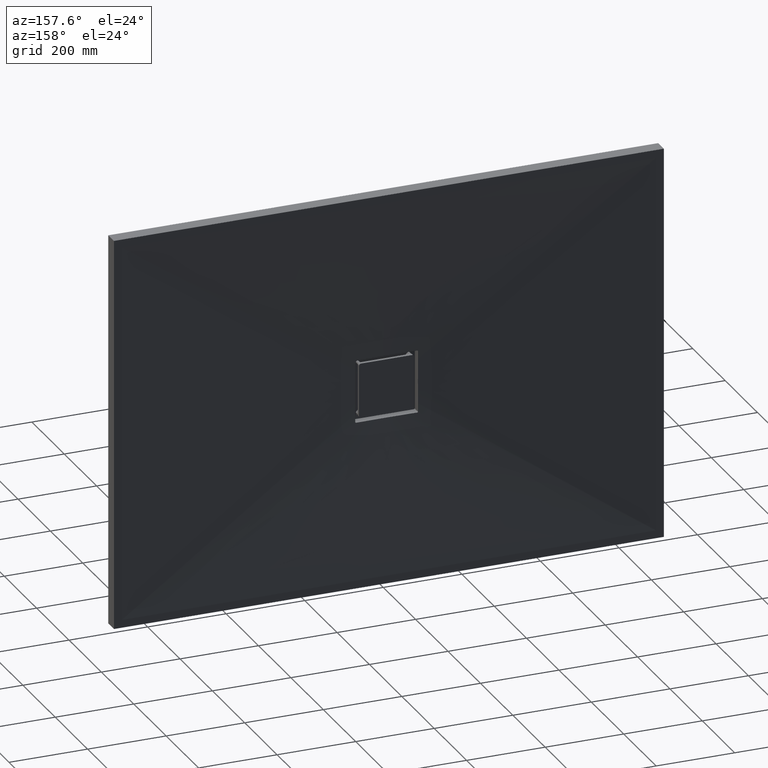
[diagram: clean part render]
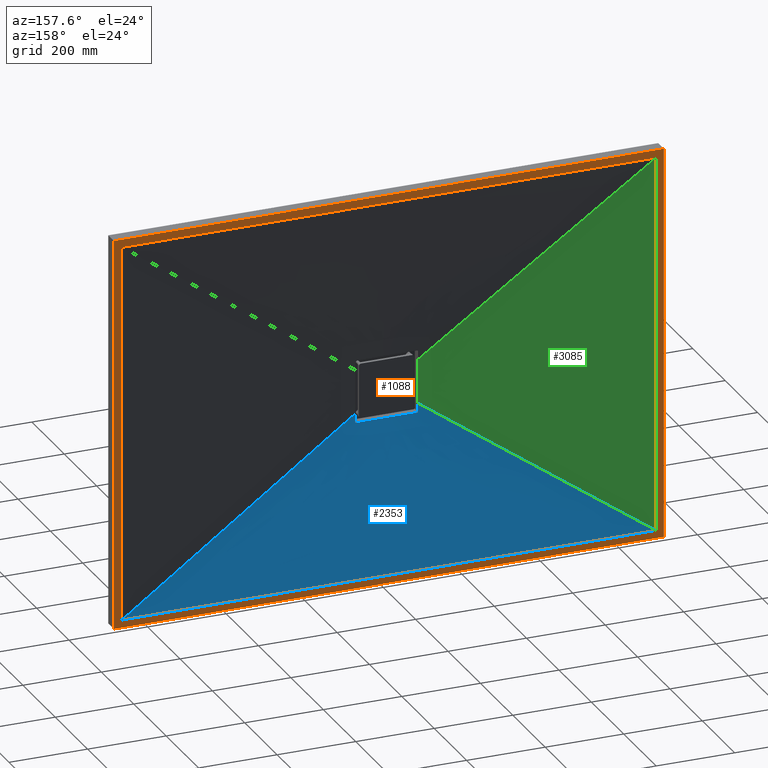
[diagram: same view with three faces highlighted in distinct colors, each labeled with its STEP entity id]
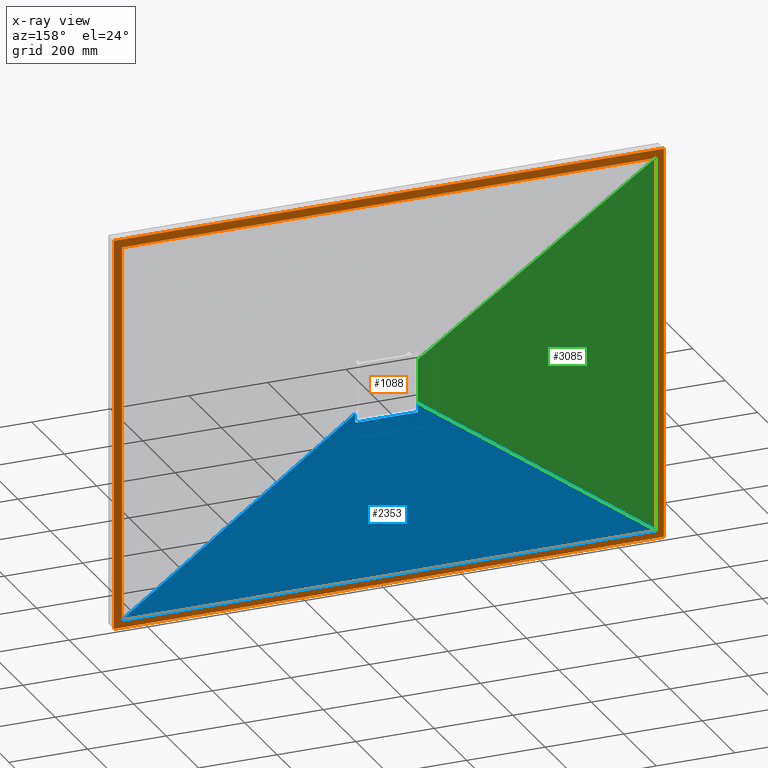
[diagram: x-ray of the same camera — body ghosted, the three highlighted faces saturated]
A machine part, auxiliary view with three faces highlighted in distinct colors.
The next image is the same camera in x-ray (body ghosted, the three faces saturated) — at least one of them is partly hidden behind the body in this view.
Their STEP definitions:

[orange] entity #1088 — the highlighted planar face has unit normal (0, 1, 0).
#45 = EDGE_LOOP ( 'NONE', ( #2621, #3109, #608, #1465 ) ) ;
#126 = VERTEX_POINT ( 'NONE', #2416 ) ;
#131 = VECTOR ( 'NONE', #470, 1000.000000000000000 ) ;
#140 = CARTESIAN_POINT ( 'NONE',  ( -699.9999999999993200, 35.00000000000014200, 500.0000000000000000 ) ) ;
#142 = VECTOR ( 'NONE', #3238, 1000.000000000000000 ) ;
#222 = CARTESIAN_POINT ( 'NONE',  ( -679.9999999999997700, 35.00000000000014200, -479.9999999999999400 ) ) ;
#234 = DIRECTION ( 'NONE',  ( 1.156482317317871700E-016, 0.0000000000000000000, 1.000000000000000000 ) ) ;
#257 = CARTESIAN_POINT ( 'NONE',  ( -699.9999999999993200, 35.00000000000014200, -499.9999999999999400 ) ) ;
#310 = EDGE_LOOP ( 'NONE', ( #2459, #1642, #1065, #3035 ) ) ;
#355 = CARTESIAN_POINT ( 'NONE',  ( 699.9999999999993200, 35.00000000000014200, -499.9999999999999400 ) ) ;
#466 = CARTESIAN_POINT ( 'NONE',  ( -679.9999999999997700, 35.00000000000014200, 480.0000000000000600 ) ) ;
#470 = DIRECTION ( 'NONE',  ( 1.000000000000000000, 0.0000000000000000000, 0.0000000000000000000 ) ) ;
#490 = DIRECTION ( 'NONE',  ( -3.330669073875470600E-016, -0.0000000000000000000, -1.000000000000000000 ) ) ;
#547 = DIRECTION ( 'NONE',  ( -1.000000000000000000, 0.0000000000000000000, 0.0000000000000000000 ) ) ;
#558 = DIRECTION ( 'NONE',  ( -1.000000000000000000, -0.0000000000000000000, -0.0000000000000000000 ) ) ;
#601 = CARTESIAN_POINT ( 'NONE',  ( 679.9999999999997700, 35.00000000000014200, -479.9999999999999400 ) ) ;
#608 = ORIENTED_EDGE ( 'NONE', *, *, #905, .T. ) ;
#678 = VECTOR ( 'NONE', #3177, 1000.000000000000000 ) ;
#716 = CARTESIAN_POINT ( 'NONE',  ( -699.9999999999993200, 35.00000000000014200, -499.9999999999999400 ) ) ;
#750 = EDGE_CURVE ( 'NONE', #2405, #1628, #1140, .T. ) ;
#752 = FACE_BOUND ( 'NONE', #310, .T. ) ;
#820 = EDGE_CURVE ( 'NONE', #2036, #2405, #3057, .T. ) ;
#874 = CARTESIAN_POINT ( 'NONE',  ( 679.9999999999997700, 35.00000000000014200, 480.0000000000000600 ) ) ;
#893 = LINE ( 'NONE', #257, #678 ) ;
#905 = EDGE_CURVE ( 'NONE', #2090, #1307, #1051, .T. ) ;
#912 = CARTESIAN_POINT ( 'NONE',  ( 700.0000000000010200, 35.00000000000014200, 500.0000000000000000 ) ) ;
#919 = AXIS2_PLACEMENT_3D ( 'NONE', #2153, #1322, #2033 ) ;
#1051 = LINE ( 'NONE', #1749, #1505 ) ;
#1065 = ORIENTED_EDGE ( 'NONE', *, *, #750, .F. ) ;
#1088 = ADVANCED_FACE ( 'NONE', ( #752, #1895 ), #1566, .T. ) ;
#1140 = LINE ( 'NONE', #466, #131 ) ;
#1273 = LINE ( 'NONE', #140, #1370 ) ;
#1295 = CARTESIAN_POINT ( 'NONE',  ( -699.9999999999993200, 35.00000000000014200, 500.0000000000000000 ) ) ;
#1307 = VERTEX_POINT ( 'NONE', #355 ) ;
#1322 = DIRECTION ( 'NONE',  ( 0.0000000000000000000, 1.000000000000000000, 0.0000000000000000000 ) ) ;
#1370 = VECTOR ( 'NONE', #2052, 1000.000000000000000 ) ;
#1384 = EDGE_CURVE ( 'NONE', #1628, #1669, #2929, .T. ) ;
#1422 = EDGE_CURVE ( 'NONE', #1307, #126, #2718, .T. ) ;
#1465 = ORIENTED_EDGE ( 'NONE', *, *, #1422, .T. ) ;
#1505 = VECTOR ( 'NONE', #490, 1000.000000000000000 ) ;
#1545 = EDGE_CURVE ( 'NONE', #3053, #2090, #1273, .T. ) ;
#1566 = PLANE ( 'NONE',  #919 ) ;
#1628 = VERTEX_POINT ( 'NONE', #1664 ) ;
#1642 = ORIENTED_EDGE ( 'NONE', *, *, #1384, .F. ) ;
#1664 = CARTESIAN_POINT ( 'NONE',  ( 679.9999999999997700, 35.00000000000014200, 480.0000000000000600 ) ) ;
#1669 = VERTEX_POINT ( 'NONE', #3096 ) ;
#1749 = CARTESIAN_POINT ( 'NONE',  ( 699.9999999999993200, 35.00000000000014200, -499.9999999999999400 ) ) ;
#1895 = FACE_OUTER_BOUND ( 'NONE', #45, .T. ) ;
#2033 = DIRECTION ( 'NONE',  ( 0.0000000000000000000, -0.0000000000000000000, 1.000000000000000000 ) ) ;
#2036 = VERTEX_POINT ( 'NONE', #2788 ) ;
#2052 = DIRECTION ( 'NONE',  ( 1.000000000000000000, 0.0000000000000000000, 0.0000000000000000000 ) ) ;
#2090 = VERTEX_POINT ( 'NONE', #912 ) ;
#2153 = CARTESIAN_POINT ( 'NONE',  ( -699.9999999999993200, 35.00000000000014200, 500.0000000000000000 ) ) ;
#2258 = LINE ( 'NONE', #601, #2397 ) ;
#2397 = VECTOR ( 'NONE', #547, 1000.000000000000000 ) ;
#2405 = VERTEX_POINT ( 'NONE', #2790 ) ;
#2416 = CARTESIAN_POINT ( 'NONE',  ( -699.9999999999993200, 35.00000000000014200, -499.9999999999999400 ) ) ;
#2459 = ORIENTED_EDGE ( 'NONE', *, *, #3199, .F. ) ;
#2621 = ORIENTED_EDGE ( 'NONE', *, *, #2685, .T. ) ;
#2685 = EDGE_CURVE ( 'NONE', #126, #3053, #893, .T. ) ;
#2718 = LINE ( 'NONE', #716, #3272 ) ;
#2788 = CARTESIAN_POINT ( 'NONE',  ( -679.9999999999997700, 35.00000000000014200, -479.9999999999999400 ) ) ;
#2790 = CARTESIAN_POINT ( 'NONE',  ( -679.9999999999997700, 35.00000000000014200, 480.0000000000000600 ) ) ;
#2929 = LINE ( 'NONE', #874, #142 ) ;
#3035 = ORIENTED_EDGE ( 'NONE', *, *, #820, .F. ) ;
#3053 = VERTEX_POINT ( 'NONE', #1295 ) ;
#3057 = LINE ( 'NONE', #222, #3295 ) ;
#3096 = CARTESIAN_POINT ( 'NONE',  ( 679.9999999999997700, 35.00000000000014200, -479.9999999999999400 ) ) ;
#3109 = ORIENTED_EDGE ( 'NONE', *, *, #1545, .T. ) ;
#3177 = DIRECTION ( 'NONE',  ( 1.110223024625156800E-016, 0.0000000000000000000, 1.000000000000000000 ) ) ;
#3199 = EDGE_CURVE ( 'NONE', #1669, #2036, #2258, .T. ) ;
#3238 = DIRECTION ( 'NONE',  ( -3.469446951953615200E-016, 0.0000000000000000000, -1.000000000000000000 ) ) ;
#3272 = VECTOR ( 'NONE', #558, 1000.000000000000000 ) ;
#3295 = VECTOR ( 'NONE', #234, 1000.000000000000000 ) ;

[blue] entity #2353 — the highlighted face is a freeform B-spline surface patch.
#89 = ORIENTED_EDGE ( 'NONE', *, *, #117, .T. ) ;
#117 = EDGE_CURVE ( 'NONE', #320, #2730, #2048, .T. ) ;
#128 = ORIENTED_EDGE ( 'NONE', *, *, #639, .F. ) ;
#145 = LINE ( 'NONE', #2278, #243 ) ;
#152 = DIRECTION ( 'NONE',  ( -0.8168055355349187500, 0.01993367139264316100, -0.5765686133187660800 ) ) ;
#169 = B_SPLINE_SURFACE_WITH_KNOTS ( 'NONE', 3, 1, ( 
 ( #2120, #1365 ),
 ( #2379, #1672 ),
 ( #1846, #1356 ),
 ( #2358, #1274 ),
 ( #809, #2370 ),
 ( #530, #745 ),
 ( #727, #1279 ),
 ( #733, #1426 ),
 ( #1410, #1440 ),
 ( #1405, #1459 ),
 ( #1743, #1702 ),
 ( #1698, #1665 ),
 ( #1346, #2313 ),
 ( #1599, #1588 ),
 ( #1553, #1538 ),
 ( #1521, #2147 ),
 ( #2015, #2009 ),
 ( #1996, #1968 ),
 ( #2041, #2020 ),
 ( #2276, #2239 ),
 ( #2111, #2100 ),
 ( #1864, #2156 ),
 ( #1797, #2084 ),
 ( #2080, #2075 ),
 ( #2053, #2234 ),
 ( #2445, #2432 ),
 ( #2410, #2392 ),
 ( #3106, #2469 ),
 ( #2620, #2605 ),
 ( #2542, #2532 ),
 ( #2580, #2318 ),
 ( #2508, #2872 ),
 ( #2943, #2975 ),
 ( #3065, #2073 ) ),
 .UNSPECIFIED., .F., .F., .F.,
 ( 4, 2, 2, 2, 2, 2, 2, 2, 2, 2, 2, 2, 2, 2, 2, 2, 4 ),
 ( 2, 2 ),
 ( 0.0000000000000000000, 0.06249999999999994400, 0.1249999999999998900, 0.1874999999999998300, 0.2499999999999997800, 0.3124999999999997200, 0.3749999999999997200, 0.4374999999999997200, 0.5000000000000000000, 0.5624999999999996700, 0.6249999999999997800, 0.6874999999999997800, 0.7499999999999998900, 0.8124999999999998900, 0.8750000000000000000, 0.9375000000000000000, 1.000000000000000000 ),
 ( 0.0000000000000000000, 1.000000000000000000 ),
 .UNSPECIFIED. ) ;
#182 = FACE_OUTER_BOUND ( 'NONE', #2255, .T. ) ;
#212 = CARTESIAN_POINT ( 'NONE',  ( 80.00000000000007100, 20.58467524346734800, -70.49061542624582400 ) ) ;
#243 = VECTOR ( 'NONE', #152, 999.9999999999998900 ) ;
#279 = CARTESIAN_POINT ( 'NONE',  ( 80.00000000000007100, 20.45860607811348700, -63.48082369486994700 ) ) ;
#294 = CARTESIAN_POINT ( 'NONE',  ( 77.50000000000056800, 20.75706579653857600, -79.99999999999984400 ) ) ;
#320 = VERTEX_POINT ( 'NONE', #2365 ) ;
#343 = CARTESIAN_POINT ( 'NONE',  ( 80.00000000000007100, 20.73350657552541800, -77.49999999999990100 ) ) ;
#358 = CARTESIAN_POINT ( 'NONE',  ( 372.6787145305899000, 27.49999999999985800, -263.0673279039460800 ) ) ;
#362 = CARTESIAN_POINT ( 'NONE',  ( -79.74707787748410200, 20.75409927133345500, -78.60790850479594400 ) ) ;
#381 = CARTESIAN_POINT ( 'NONE',  ( 80.00000000000007100, 20.73350657552541800, -77.49999999999990100 ) ) ;
#391 = CARTESIAN_POINT ( 'NONE',  ( -79.67038061985636000, 20.75625936169856800, -78.75144202631240400 ) ) ;
#400 = CARTESIAN_POINT ( 'NONE',  ( -79.48917342036298800, 20.75992770636584700, -79.02310481713834600 ) ) ;
#447 = CARTESIAN_POINT ( 'NONE',  ( -79.38368863363230300, 20.76143561031203100, -79.15175346207726600 ) ) ;
#511 = VERTEX_POINT ( 'NONE', #294 ) ;
#512 = CARTESIAN_POINT ( 'NONE',  ( -77.50000000000056800, 20.75706579653857600, -79.99999999999984400 ) ) ;
#530 = CARTESIAN_POINT ( 'NONE',  ( -481.6666666666673700, 35.00000000000014200, -479.9999999999999400 ) ) ;
#536 = ORIENTED_EDGE ( 'NONE', *, *, #827, .T. ) ;
#547 = DIRECTION ( 'NONE',  ( -1.000000000000000000, 0.0000000000000000000, 0.0000000000000000000 ) ) ;
#568 = CARTESIAN_POINT ( 'NONE',  ( 77.82738070150682600, 20.76070606300809400, -79.98381226717472700 ) ) ;
#577 = CARTESIAN_POINT ( 'NONE',  ( 77.50000000000056800, 20.75706579653857600, -79.99999999999984400 ) ) ;
#601 = CARTESIAN_POINT ( 'NONE',  ( 679.9999999999997700, 35.00000000000014200, -479.9999999999999400 ) ) ;
#639 = EDGE_CURVE ( 'NONE', #1621, #2036, #145, .T. ) ;
#697 = CARTESIAN_POINT ( 'NONE',  ( -79.87240730175274500, 20.74912490909730400, -78.30529735940714900 ) ) ;
#703 = CARTESIAN_POINT ( 'NONE',  ( -78.60908200911690400, 20.76499836056799700, -79.74642391452567800 ) ) ;
#709 = CARTESIAN_POINT ( 'NONE',  ( -79.92040446721442500, 20.74631211121282700, -78.14663438106192900 ) ) ;
#711 = ORIENTED_EDGE ( 'NONE', *, *, #728, .T. ) ;
#727 = CARTESIAN_POINT ( 'NONE',  ( -453.3333333333331400, 35.00000000000014200, -479.9999999999999400 ) ) ;
#728 = EDGE_CURVE ( 'NONE', #1621, #320, #1959, .T. ) ;
#730 = CARTESIAN_POINT ( 'NONE',  ( -80.00000000000007100, 20.73350657552541800, -77.49999999999990100 ) ) ;
#733 = CARTESIAN_POINT ( 'NONE',  ( -396.6666666666665200, 35.00000000000014200, -479.9999999999999400 ) ) ;
#735 = CARTESIAN_POINT ( 'NONE',  ( -80.00000000000007100, 20.73701092807298400, -77.66504155642644500 ) ) ;
#745 = CARTESIAN_POINT ( 'NONE',  ( -51.80680068004583900, 20.00000000000001800, -61.03328764796245300 ) ) ;
#753 = CARTESIAN_POINT ( 'NONE',  ( -79.98381714763809200, 20.74026820298271500, -77.82733191836743500 ) ) ;
#782 = CARTESIAN_POINT ( 'NONE',  ( -78.15820255379995300, 20.76362837704678900, -79.93366033475634000 ) ) ;
#799 = CARTESIAN_POINT ( 'NONE',  ( -80.00000000000007100, 20.35734355943930000, -56.47058823529405200 ) ) ;
#809 = CARTESIAN_POINT ( 'NONE',  ( -538.3333333333322300, 35.00000000000014200, -479.9999999999999400 ) ) ;
#827 = EDGE_CURVE ( 'NONE', #3081, #1219, #941, .T. ) ;
#853 = CARTESIAN_POINT ( 'NONE',  ( 25.83427551179261900, 20.12749929265573500, -79.99999999999990100 ) ) ;
#927 = CARTESIAN_POINT ( 'NONE',  ( -12.91759429616532300, 19.99999999489199700, -80.00000000000002800 ) ) ;
#932 = B_SPLINE_CURVE_WITH_KNOTS ( 'NONE', 3,
 ( #1716, #1261, #2851, #2751, #927, #1569, #853, #1577, #1376, #1636 ),
 .UNSPECIFIED., .F., .F.,
 ( 4, 2, 2, 2, 4 ),
 ( 0.0000000000000000000, 0.03875217006288057100, 0.07750434012576114300, 0.1162565101886417200, 0.1550086802515223100 ),
 .UNSPECIFIED. ) ;
#941 = B_SPLINE_CURVE_WITH_KNOTS ( 'NONE', 3,
 ( #343, #212, #279, #2897 ),
 .UNSPECIFIED., .F., .F.,
 ( 4, 4 ),
 ( 0.0000000000000000000, 0.02103277579836340300 ),
 .UNSPECIFIED. ) ;
#985 = CARTESIAN_POINT ( 'NONE',  ( -78.75450217902837800, 20.76506078911380700, -79.66868922616491500 ) ) ;
#1007 = CARTESIAN_POINT ( 'NONE',  ( -79.15324876267752100, 20.76365048624584000, -79.38237639611865900 ) ) ;
#1015 = CARTESIAN_POINT ( 'NONE',  ( -79.02751074129669500, 20.76438081022866200, -79.48587502428887300 ) ) ;
#1047 = LINE ( 'NONE', #358, #1723 ) ;
#1050 = CARTESIAN_POINT ( 'NONE',  ( 77.66506669784371300, 20.75908371244696600, -79.99999999999987200 ) ) ;
#1186 = ORIENTED_EDGE ( 'NONE', *, *, #2005, .T. ) ;
#1219 = VERTEX_POINT ( 'NONE', #1840 ) ;
#1233 = CARTESIAN_POINT ( 'NONE',  ( 79.02326010243385200, 20.76439862313674600, -79.48905563611543800 ) ) ;
#1261 = CARTESIAN_POINT ( 'NONE',  ( -64.58357499661227100, 20.59916441585735600, -79.99999999999985800 ) ) ;
#1274 = CARTESIAN_POINT ( 'NONE',  ( -58.28454295115470500, 20.00000000000001800, -54.87369494992533700 ) ) ;
#1279 = CARTESIAN_POINT ( 'NONE',  ( -49.43009145341115100, 20.00000000000001800, -62.97968655354046800 ) ) ;
#1297 = EDGE_CURVE ( 'NONE', #1669, #1219, #1047, .T. ) ;
#1346 = CARTESIAN_POINT ( 'NONE',  ( -198.3333333333323500, 35.00000000000014200, -479.9999999999999400 ) ) ;
#1356 = CARTESIAN_POINT ( 'NONE',  ( -62.06099151943256200, 20.00000000000001800, -50.56326409664824000 ) ) ;
#1365 = CARTESIAN_POINT ( 'NONE',  ( -65.35742906118002800, 20.00000000000001800, -46.13465580789232900 ) ) ;
#1376 = CARTESIAN_POINT ( 'NONE',  ( 64.58357517508162000, 20.59916441803909500, -79.99999999999987200 ) ) ;
#1405 = CARTESIAN_POINT ( 'NONE',  ( -311.6666666666656600, 35.00000000000014200, -479.9999999999999400 ) ) ;
#1410 = CARTESIAN_POINT ( 'NONE',  ( -368.3333333333322900, 35.00000000000014200, -479.9999999999999400 ) ) ;
#1424 = CARTESIAN_POINT ( 'NONE',  ( 79.66878301904616000, 20.75630240063225800, -78.75433979079080900 ) ) ;
#1426 = CARTESIAN_POINT ( 'NONE',  ( -44.36422355240665600, 20.00000000000001800, -66.64525885662830300 ) ) ;
#1440 = CARTESIAN_POINT ( 'NONE',  ( -41.67501125818873200, 20.00000000000001800, -68.36426128085371100 ) ) ;
#1459 = CARTESIAN_POINT ( 'NONE',  ( -36.01526803026189300, 20.00000000000001800, -71.50789643497756700 ) ) ;
#1490 = EDGE_CURVE ( 'NONE', #511, #3081, #2256, .T. ) ;
#1521 = CARTESIAN_POINT ( 'NONE',  ( -56.66666666666664300, 35.00000000000014200, -479.9999999999999400 ) ) ;
#1538 = CARTESIAN_POINT ( 'NONE',  ( -13.73102880587495600, 20.00000000000001800, -78.88784476878463200 ) ) ;
#1553 = CARTESIAN_POINT ( 'NONE',  ( -113.3333333333332900, 35.00000000000014200, -479.9999999999999400 ) ) ;
#1569 = CARTESIAN_POINT ( 'NONE',  ( 12.91759597637898300, 20.00000000510804600, -80.00000000000002800 ) ) ;
#1577 = CARTESIAN_POINT ( 'NONE',  ( 51.66729859523421500, 20.42926260953565900, -79.99999999999987200 ) ) ;
#1588 = CARTESIAN_POINT ( 'NONE',  ( -17.09895815464257400, 20.00000000000001800, -78.22510923450477100 ) ) ;
#1599 = CARTESIAN_POINT ( 'NONE',  ( -141.6666666666657200, 35.00000000000014200, -479.9999999999999400 ) ) ;
#1621 = VERTEX_POINT ( 'NONE', #799 ) ;
#1636 = CARTESIAN_POINT ( 'NONE',  ( 77.50000000000056800, 20.75706579653857600, -79.99999999999984400 ) ) ;
#1665 = CARTESIAN_POINT ( 'NONE',  ( -26.87177666348894400, 20.00000000000001800, -75.42537924782000400 ) ) ;
#1669 = VERTEX_POINT ( 'NONE', #3096 ) ;
#1672 = CARTESIAN_POINT ( 'NONE',  ( -63.78699026210377100, 20.00000000000001800, -48.35944410658365900 ) ) ;
#1698 = CARTESIAN_POINT ( 'NONE',  ( -226.6666666666665700, 35.00000000000014200, -479.9999999999999400 ) ) ;
#1702 = CARTESIAN_POINT ( 'NONE',  ( -33.04474773912780000, 20.00000000000001800, -72.93233070859139400 ) ) ;
#1715 = CARTESIAN_POINT ( 'NONE',  ( 78.14672769070553200, 20.76319871978724800, -79.92038112626129000 ) ) ;
#1716 = CARTESIAN_POINT ( 'NONE',  ( -77.50000000000056800, 20.75706579653857600, -79.99999999999984400 ) ) ;
#1723 = VECTOR ( 'NONE', #3210, 1000.000000000000100 ) ;
#1743 = CARTESIAN_POINT ( 'NONE',  ( -283.3333333333332000, 35.00000000000014200, -479.9999999999999400 ) ) ;
#1776 = CARTESIAN_POINT ( 'NONE',  ( -80.00000000000007100, 20.35734355943930000, -56.47058823529405200 ) ) ;
#1783 = CARTESIAN_POINT ( 'NONE',  ( 78.30541328484365200, 20.76407218991328900, -79.87236902240709900 ) ) ;
#1797 = CARTESIAN_POINT ( 'NONE',  ( 226.6666666666665700, 35.00000000000014200, -479.9999999999999400 ) ) ;
#1840 = CARTESIAN_POINT ( 'NONE',  ( 80.00000000000007100, 20.35734355943930000, -56.47058823529393800 ) ) ;
#1846 = CARTESIAN_POINT ( 'NONE',  ( -623.3333333333330300, 35.00000000000014200, -479.9999999999999400 ) ) ;
#1857 = ORIENTED_EDGE ( 'NONE', *, *, #1297, .F. ) ;
#1864 = CARTESIAN_POINT ( 'NONE',  ( 198.3333333333341400, 35.00000000000014200, -479.9999999999998300 ) ) ;
#1959 = B_SPLINE_CURVE_WITH_KNOTS ( 'NONE', 3,
 ( #1776, #2204, #3296, #2724 ),
 .UNSPECIFIED., .F., .F.,
 ( 4, 4 ),
 ( 0.0000000000000000000, 0.02103277579836335500 ),
 .UNSPECIFIED. ) ;
#1968 = CARTESIAN_POINT ( 'NONE',  ( 3.454373351640782600, 20.00000000000001800, -79.99999999999995700 ) ) ;
#1996 = CARTESIAN_POINT ( 'NONE',  ( 28.33333333333421000, 35.00000000000014200, -479.9999999999999400 ) ) ;
#2005 = EDGE_CURVE ( 'NONE', #2730, #511, #932, .T. ) ;
#2009 = CARTESIAN_POINT ( 'NONE',  ( -3.454373351640782600, 20.00000000000001800, -79.99999999999995700 ) ) ;
#2010 = ORIENTED_EDGE ( 'NONE', *, *, #3199, .T. ) ;
#2015 = CARTESIAN_POINT ( 'NONE',  ( -28.33333333333243300, 35.00000000000014200, -479.9999999999999400 ) ) ;
#2018 = CARTESIAN_POINT ( 'NONE',  ( 78.60804628992086400, 20.76499864895589900, -79.74701107190694000 ) ) ;
#2020 = CARTESIAN_POINT ( 'NONE',  ( 6.908626131613360100, 20.00000000000001800, -79.77533509365663600 ) ) ;
#2036 = VERTEX_POINT ( 'NONE', #2788 ) ;
#2041 = CARTESIAN_POINT ( 'NONE',  ( 56.66666666666664300, 35.00000000000014200, -479.9999999999999400 ) ) ;
#2048 = B_SPLINE_CURVE_WITH_KNOTS ( 'NONE', 3,
 ( #730, #735, #753, #709, #697, #362, #391, #400, #447, #1007, #1015, #985, #703, #782, #2664, #512 ),
 .UNSPECIFIED., .F., .F.,
 ( 4, 2, 2, 2, 2, 2, 2, 4 ),
 ( 0.0000000000000000000, 0.0004882088861836414000, 0.0009764177723672828000, 0.001464626658550924200, 0.001952835544734565600, 0.002441044430918207200, 0.002929253317101848400, 0.003905671089469169400 ),
 .UNSPECIFIED. ) ;
#2053 = CARTESIAN_POINT ( 'NONE',  ( 311.6666666666674200, 35.00000000000014200, -479.9999999999999400 ) ) ;
#2073 = CARTESIAN_POINT ( 'NONE',  ( 65.35742906118180400, 20.00000000000001800, -46.13465580789232900 ) ) ;
#2075 = CARTESIAN_POINT ( 'NONE',  ( 33.04474773912780000, 20.00000000000001800, -72.93233070859139400 ) ) ;
#2080 = CARTESIAN_POINT ( 'NONE',  ( 283.3333333333332000, 35.00000000000014200, -479.9999999999999400 ) ) ;
#2084 = CARTESIAN_POINT ( 'NONE',  ( 26.87177666348894400, 20.00000000000001800, -75.42537924782000400 ) ) ;
#2100 = CARTESIAN_POINT ( 'NONE',  ( 17.09895815464435000, 20.00000000000001800, -78.22510923450477100 ) ) ;
#2111 = CARTESIAN_POINT ( 'NONE',  ( 141.6666666666674800, 35.00000000000014200, -479.9999999999999400 ) ) ;
#2120 = CARTESIAN_POINT ( 'NONE',  ( -679.9999999999997700, 35.00000000000014200, -479.9999999999999400 ) ) ;
#2147 = CARTESIAN_POINT ( 'NONE',  ( -6.908626131613360100, 20.00000000000001800, -79.77533509365663600 ) ) ;
#2156 = CARTESIAN_POINT ( 'NONE',  ( 23.66941439471226300, 20.00000000000001800, -76.49379652583499500 ) ) ;
#2204 = CARTESIAN_POINT ( 'NONE',  ( -80.00000000000007100, 20.45860607811348700, -63.48082369487004000 ) ) ;
#2233 = CARTESIAN_POINT ( 'NONE',  ( 79.15190171707804700, 20.76365987754815000, -79.38355843569407000 ) ) ;
#2234 = CARTESIAN_POINT ( 'NONE',  ( 36.01526803026189300, 20.00000000000001800, -71.50789643497756700 ) ) ;
#2239 = CARTESIAN_POINT ( 'NONE',  ( 13.73102880587495600, 20.00000000000001800, -78.88784476878463200 ) ) ;
#2255 = EDGE_LOOP ( 'NONE', ( #128, #711, #89, #1186, #3184, #536, #1857, #2010 ) ) ;
#2256 = B_SPLINE_CURVE_WITH_KNOTS ( 'NONE', 3,
 ( #577, #1050, #568, #1715, #1783, #2018, #3118, #1233, #2233, #3136, #3147, #1424, #3075, #3197, #2330, #3142 ),
 .UNSPECIFIED., .F., .F.,
 ( 4, 2, 2, 2, 2, 2, 2, 4 ),
 ( 0.0000000000000000000, 0.0004882088434272823500, 0.0009764176868545646900, 0.001464626530281847200, 0.001952835373709129400, 0.002441044217136411600, 0.002929253060563694400, 0.003905670747418275200 ),
 .UNSPECIFIED. ) ;
#2258 = LINE ( 'NONE', #601, #2397 ) ;
#2276 = CARTESIAN_POINT ( 'NONE',  ( 113.3333333333332900, 35.00000000000014200, -479.9999999999999400 ) ) ;
#2278 = CARTESIAN_POINT ( 'NONE',  ( -372.6787145305899000, 27.49999999999985800, -263.0673279039460800 ) ) ;
#2313 = CARTESIAN_POINT ( 'NONE',  ( -23.66941439471226300, 20.00000000000001800, -76.49379652583488100 ) ) ;
#2318 = CARTESIAN_POINT ( 'NONE',  ( 58.28454295115470500, 20.00000000000001800, -54.87369494992533700 ) ) ;
#2330 = CARTESIAN_POINT ( 'NONE',  ( 80.00000000000008500, 20.74051526655202300, -77.83008245027912200 ) ) ;
#2353 = ADVANCED_FACE ( 'NONE', ( #182 ), #169, .F. ) ;
#2358 = CARTESIAN_POINT ( 'NONE',  ( -566.6666666666664000, 35.00000000000014200, -479.9999999999999400 ) ) ;
#2365 = CARTESIAN_POINT ( 'NONE',  ( -80.00000000000007100, 20.73350657552541800, -77.49999999999990100 ) ) ;
#2370 = CARTESIAN_POINT ( 'NONE',  ( -56.23397854736467100, 20.00000000000001800, -56.98022862849494200 ) ) ;
#2379 = CARTESIAN_POINT ( 'NONE',  ( -651.6666666666673100, 35.00000000000014200, -479.9999999999999400 ) ) ;
#2392 = CARTESIAN_POINT ( 'NONE',  ( 44.36422355240665600, 20.00000000000001800, -66.64525885662830300 ) ) ;
#2397 = VECTOR ( 'NONE', #547, 1000.000000000000000 ) ;
#2410 = CARTESIAN_POINT ( 'NONE',  ( 396.6666666666665200, 35.00000000000014200, -479.9999999999999400 ) ) ;
#2432 = CARTESIAN_POINT ( 'NONE',  ( 41.67501125819050900, 20.00000000000001800, -68.36426128085371100 ) ) ;
#2445 = CARTESIAN_POINT ( 'NONE',  ( 368.3333333333340500, 35.00000000000014200, -479.9999999999999400 ) ) ;
#2469 = CARTESIAN_POINT ( 'NONE',  ( 49.43009145341292800, 20.00000000000001800, -62.97968655354058100 ) ) ;
#2508 = CARTESIAN_POINT ( 'NONE',  ( 623.3333333333330300, 35.00000000000014200, -479.9999999999999400 ) ) ;
#2532 = CARTESIAN_POINT ( 'NONE',  ( 56.23397854736467100, 20.00000000000001800, -56.98022862849494200 ) ) ;
#2542 = CARTESIAN_POINT ( 'NONE',  ( 538.3333333333339400, 35.00000000000014200, -479.9999999999999400 ) ) ;
#2580 = CARTESIAN_POINT ( 'NONE',  ( 566.6666666666664000, 35.00000000000014200, -479.9999999999999400 ) ) ;
#2605 = CARTESIAN_POINT ( 'NONE',  ( 51.80680068004761600, 20.00000000000001800, -61.03328764796245300 ) ) ;
#2620 = CARTESIAN_POINT ( 'NONE',  ( 481.6666666666673700, 35.00000000000014200, -479.9999999999999400 ) ) ;
#2664 = CARTESIAN_POINT ( 'NONE',  ( -77.83013465113151600, 20.76110164370299300, -79.99999999999987200 ) ) ;
#2724 = CARTESIAN_POINT ( 'NONE',  ( -80.00000000000007100, 20.73350657552541800, -77.49999999999990100 ) ) ;
#2730 = VERTEX_POINT ( 'NONE', #2813 ) ;
#2751 = CARTESIAN_POINT ( 'NONE',  ( -25.83427483130534700, 20.12749928539670600, -79.99999999999987200 ) ) ;
#2788 = CARTESIAN_POINT ( 'NONE',  ( -679.9999999999997700, 35.00000000000014200, -479.9999999999999400 ) ) ;
#2813 = CARTESIAN_POINT ( 'NONE',  ( -77.50000000000056800, 20.75706579653857600, -79.99999999999984400 ) ) ;
#2851 = CARTESIAN_POINT ( 'NONE',  ( -51.66729820673268100, 20.42926260430750000, -79.99999999999982900 ) ) ;
#2872 = CARTESIAN_POINT ( 'NONE',  ( 62.06099151943256200, 20.00000000000001800, -50.56326409664824000 ) ) ;
#2897 = CARTESIAN_POINT ( 'NONE',  ( 80.00000000000007100, 20.35734355943930000, -56.47058823529393800 ) ) ;
#2943 = CARTESIAN_POINT ( 'NONE',  ( 651.6666666666673100, 35.00000000000014200, -479.9999999999999400 ) ) ;
#2975 = CARTESIAN_POINT ( 'NONE',  ( 63.78699026210554700, 20.00000000000001800, -48.35944410658365900 ) ) ;
#3065 = CARTESIAN_POINT ( 'NONE',  ( 679.9999999999997700, 35.00000000000014200, -479.9999999999999400 ) ) ;
#3075 = CARTESIAN_POINT ( 'NONE',  ( 79.74649152433293900, 20.75411443861686300, -78.60894243231763300 ) ) ;
#3081 = VERTEX_POINT ( 'NONE', #381 ) ;
#3096 = CARTESIAN_POINT ( 'NONE',  ( 679.9999999999997700, 35.00000000000014200, -479.9999999999999400 ) ) ;
#3106 = CARTESIAN_POINT ( 'NONE',  ( 453.3333333333331400, 35.00000000000014200, -479.9999999999999400 ) ) ;
#3118 = CARTESIAN_POINT ( 'NONE',  ( 78.75158757927049200, 20.76506062933646700, -79.67029772027827100 ) ) ;
#3136 = CARTESIAN_POINT ( 'NONE',  ( 79.38250364354178100, 20.76145051686090800, -79.15310365543473400 ) ) ;
#3142 = CARTESIAN_POINT ( 'NONE',  ( 80.00000000000007100, 20.73350657552541800, -77.49999999999990100 ) ) ;
#3147 = CARTESIAN_POINT ( 'NONE',  ( 79.48599141747017400, 20.75998114158097600, -79.02735921910940000 ) ) ;
#3184 = ORIENTED_EDGE ( 'NONE', *, *, #1490, .T. ) ;
#3197 = CARTESIAN_POINT ( 'NONE',  ( 79.93368267412500900, 20.74670891633739000, -78.15810226411504400 ) ) ;
#3199 = EDGE_CURVE ( 'NONE', #1669, #2036, #2258, .T. ) ;
#3210 = DIRECTION ( 'NONE',  ( -0.8168055355349185300, -0.01993367139264316800, 0.5765686133187664100 ) ) ;
#3296 = CARTESIAN_POINT ( 'NONE',  ( -80.00000000000007100, 20.58467524346734100, -70.49061542624583900 ) ) ;

[green] entity #3085 — the highlighted face is a freeform B-spline surface patch.
#87 = CARTESIAN_POINT ( 'NONE',  ( -80.00000000000004300, 20.17980634573665500, 37.64753571550152600 ) ) ;
#145 = LINE ( 'NONE', #2278, #243 ) ;
#147 = CARTESIAN_POINT ( 'NONE',  ( -79.99999999902495100, 19.99999904847859600, -9.411766398011588200 ) ) ;
#152 = DIRECTION ( 'NONE',  ( -0.8168055355349187500, 0.01993367139264316100, -0.5765686133187660800 ) ) ;
#179 = B_SPLINE_SURFACE_WITH_KNOTS ( 'NONE', 3, 1, ( 
 ( #3259, #3255 ),
 ( #3240, #3226 ),
 ( #3209, #3174 ),
 ( #3161, #3141 ),
 ( #3135, #3123 ),
 ( #3112, #3099 ),
 ( #3074, #3049 ),
 ( #3022, #3011 ),
 ( #2995, #2974 ),
 ( #2953, #2935 ),
 ( #2922, #2910 ),
 ( #2878, #2857 ),
 ( #2850, #2846 ),
 ( #2802, #2782 ),
 ( #2746, #2683 ),
 ( #2660, #2516 ),
 ( #2478, #2467 ),
 ( #2457, #2442 ) ),
 .UNSPECIFIED., .F., .F., .F.,
 ( 4, 2, 2, 2, 2, 2, 2, 2, 4 ),
 ( 2, 2 ),
 ( 0.0000000000000000000, 0.1250000000000000000, 0.2500000000000000000, 0.3750000000000000000, 0.5000000000000000000, 0.6250000000000000000, 0.7500000000000000000, 0.8750000000000000000, 1.000000000000000000 ),
 ( 0.0000000000000000000, 1.000000000000000000 ),
 .UNSPECIFIED. ) ;
#222 = CARTESIAN_POINT ( 'NONE',  ( -679.9999999999997700, 35.00000000000014200, -479.9999999999999400 ) ) ;
#234 = DIRECTION ( 'NONE',  ( 1.156482317317871700E-016, 0.0000000000000000000, 1.000000000000000000 ) ) ;
#242 = VECTOR ( 'NONE', #1957, 999.9999999999998900 ) ;
#243 = VECTOR ( 'NONE', #152, 999.9999999999998900 ) ;
#326 = CARTESIAN_POINT ( 'NONE',  ( -80.00000000000007100, 20.35734355943930000, 56.47058823529427200 ) ) ;
#341 = CARTESIAN_POINT ( 'NONE',  ( -80.00000000000002800, 20.04445364958057900, 18.82421623773216300 ) ) ;
#441 = CARTESIAN_POINT ( 'NONE',  ( -80.00000000000002800, 20.17980418503748300, -37.64731621928805100 ) ) ;
#609 = LINE ( 'NONE', #1993, #242 ) ;
#639 = EDGE_CURVE ( 'NONE', #1621, #2036, #145, .T. ) ;
#799 = CARTESIAN_POINT ( 'NONE',  ( -80.00000000000007100, 20.35734355943930000, -56.47058823529405200 ) ) ;
#820 = EDGE_CURVE ( 'NONE', #2036, #2405, #3057, .T. ) ;
#1143 = ORIENTED_EDGE ( 'NONE', *, *, #820, .T. ) ;
#1404 = CARTESIAN_POINT ( 'NONE',  ( -80.00000000000007100, 20.35734355943930000, 56.47058823529427200 ) ) ;
#1448 = EDGE_CURVE ( 'NONE', #1592, #1621, #2266, .T. ) ;
#1526 = CARTESIAN_POINT ( 'NONE',  ( -79.99999999902493600, 20.00000095152143600, 9.412409437793510100 ) ) ;
#1592 = VERTEX_POINT ( 'NONE', #1404 ) ;
#1621 = VERTEX_POINT ( 'NONE', #799 ) ;
#1800 = ORIENTED_EDGE ( 'NONE', *, *, #2773, .T. ) ;
#1957 = DIRECTION ( 'NONE',  ( 0.8168055355349187500, -0.01993367139264316500, -0.5765686133187660800 ) ) ;
#1993 = CARTESIAN_POINT ( 'NONE',  ( -372.6787145305899000, 27.49999999999985800, 263.0673279039464200 ) ) ;
#2036 = VERTEX_POINT ( 'NONE', #2788 ) ;
#2266 = B_SPLINE_CURVE_WITH_KNOTS ( 'NONE', 3,
 ( #326, #2602, #87, #341, #1526, #147, #2705, #441, #2458, #2674 ),
 .UNSPECIFIED., .F., .F.,
 ( 4, 2, 2, 2, 4 ),
 ( 0.0000000000000000000, 0.02823569866910328700, 0.05647139733820657300, 0.08470709600730985700, 0.1129427946764131500 ),
 .UNSPECIFIED. ) ;
#2270 = FACE_OUTER_BOUND ( 'NONE', #2847, .T. ) ;
#2278 = CARTESIAN_POINT ( 'NONE',  ( -372.6787145305899000, 27.49999999999985800, -263.0673279039460800 ) ) ;
#2405 = VERTEX_POINT ( 'NONE', #2790 ) ;
#2442 = CARTESIAN_POINT ( 'NONE',  ( -65.35742906118002800, 20.00000000000001800, -46.13465580789232900 ) ) ;
#2457 = CARTESIAN_POINT ( 'NONE',  ( -679.9999999999997700, 35.00000000000014200, -479.9999999999999400 ) ) ;
#2458 = CARTESIAN_POINT ( 'NONE',  ( -80.00000000000007100, 20.26772222570624700, -47.05895962359006300 ) ) ;
#2467 = CARTESIAN_POINT ( 'NONE',  ( -67.57451913046530500, 20.00000000000001800, -42.99377820973981600 ) ) ;
#2478 = CARTESIAN_POINT ( 'NONE',  ( -679.9999999999997700, 35.00000000000014200, -439.9999999999998900 ) ) ;
#2516 = CARTESIAN_POINT ( 'NONE',  ( -69.61561004856164900, 20.00000000000001800, -39.61951658716400700 ) ) ;
#2602 = CARTESIAN_POINT ( 'NONE',  ( -80.00000000000007100, 20.26772325166590600, 47.05906736525104600 ) ) ;
#2660 = CARTESIAN_POINT ( 'NONE',  ( -679.9999999999997700, 35.00000000000014200, -399.9999999999997700 ) ) ;
#2674 = CARTESIAN_POINT ( 'NONE',  ( -80.00000000000007100, 20.35734355943930000, -56.47058823529405200 ) ) ;
#2683 = CARTESIAN_POINT ( 'NONE',  ( -73.22444288121410200, 20.00000000000001800, -32.46875762590628500 ) ) ;
#2705 = CARTESIAN_POINT ( 'NONE',  ( -80.00000000000002800, 20.04445036047958000, -18.82367783422144900 ) ) ;
#2746 = CARTESIAN_POINT ( 'NONE',  ( -679.9999999999997700, 35.00000000000014200, -319.9999999999997200 ) ) ;
#2773 = EDGE_CURVE ( 'NONE', #2405, #1592, #609, .T. ) ;
#2782 = CARTESIAN_POINT ( 'NONE',  ( -74.79163057719162600, 20.00000000000001800, -28.69235769911970700 ) ) ;
#2788 = CARTESIAN_POINT ( 'NONE',  ( -679.9999999999997700, 35.00000000000014200, -479.9999999999999400 ) ) ;
#2790 = CARTESIAN_POINT ( 'NONE',  ( -679.9999999999997700, 35.00000000000014200, 480.0000000000000600 ) ) ;
#2802 = CARTESIAN_POINT ( 'NONE',  ( -679.9999999999997700, 35.00000000000014200, -279.9999999999997700 ) ) ;
#2846 = CARTESIAN_POINT ( 'NONE',  ( -77.34753978658837100, 20.00000000000001800, -20.84220438656792100 ) ) ;
#2847 = EDGE_LOOP ( 'NONE', ( #1800, #3000, #2890, #1143 ) ) ;
#2850 = CARTESIAN_POINT ( 'NONE',  ( -679.9999999999997700, 35.00000000000014200, -199.9999999999997400 ) ) ;
#2857 = CARTESIAN_POINT ( 'NONE',  ( -78.33576404426700900, 20.00000000000001800, -16.76881377679684300 ) ) ;
#2878 = CARTESIAN_POINT ( 'NONE',  ( -679.9999999999997700, 35.00000000000014200, -159.9999999999996900 ) ) ;
#2890 = ORIENTED_EDGE ( 'NONE', *, *, #639, .T. ) ;
#2910 = CARTESIAN_POINT ( 'NONE',  ( -79.66214233527146900, 20.00000000000001800, -8.463339910159462000 ) ) ;
#2922 = CARTESIAN_POINT ( 'NONE',  ( -679.9999999999997700, 35.00000000000014200, -79.99999999999974400 ) ) ;
#2935 = CARTESIAN_POINT ( 'NONE',  ( -80.00000000000007100, 20.00000000000001800, -4.231835607427458800 ) ) ;
#2953 = CARTESIAN_POINT ( 'NONE',  ( -679.9999999999997700, 35.00000000000014200, -39.99999999999970200 ) ) ;
#2974 = CARTESIAN_POINT ( 'NONE',  ( -80.00000000000007100, 20.00000000000001800, 4.231835607427680800 ) ) ;
#2995 = CARTESIAN_POINT ( 'NONE',  ( -679.9999999999997700, 35.00000000000014200, 40.00000000000025600 ) ) ;
#3000 = ORIENTED_EDGE ( 'NONE', *, *, #1448, .T. ) ;
#3011 = CARTESIAN_POINT ( 'NONE',  ( -79.66214233527146900, 20.00000000000001800, 8.463339910159795900 ) ) ;
#3022 = CARTESIAN_POINT ( 'NONE',  ( -679.9999999999997700, 35.00000000000014200, 80.00000000000012800 ) ) ;
#3049 = CARTESIAN_POINT ( 'NONE',  ( -78.33576404426700900, 20.00000000000001800, 16.76881377679717400 ) ) ;
#3057 = LINE ( 'NONE', #222, #3295 ) ;
#3074 = CARTESIAN_POINT ( 'NONE',  ( -679.9999999999997700, 35.00000000000014200, 160.0000000000002000 ) ) ;
#3085 = ADVANCED_FACE ( 'NONE', ( #2270 ), #179, .F. ) ;
#3099 = CARTESIAN_POINT ( 'NONE',  ( -77.34753978658837100, 20.00000000000001800, 20.84220438656814200 ) ) ;
#3112 = CARTESIAN_POINT ( 'NONE',  ( -679.9999999999997700, 35.00000000000014200, 200.0000000000002300 ) ) ;
#3123 = CARTESIAN_POINT ( 'NONE',  ( -74.79163057719162600, 20.00000000000001800, 28.69235769911993100 ) ) ;
#3135 = CARTESIAN_POINT ( 'NONE',  ( -679.9999999999997700, 35.00000000000014200, 280.0000000000000600 ) ) ;
#3141 = CARTESIAN_POINT ( 'NONE',  ( -73.22444288121410200, 20.00000000000001800, 32.46875762590650500 ) ) ;
#3161 = CARTESIAN_POINT ( 'NONE',  ( -679.9999999999997700, 35.00000000000014200, 320.0000000000001100 ) ) ;
#3174 = CARTESIAN_POINT ( 'NONE',  ( -69.61561004856164900, 20.00000000000001800, 39.61951658716422700 ) ) ;
#3209 = CARTESIAN_POINT ( 'NONE',  ( -679.9999999999997700, 35.00000000000014200, 399.9999999999999400 ) ) ;
#3226 = CARTESIAN_POINT ( 'NONE',  ( -67.57451913046530500, 20.00000000000001800, 42.99377820974015000 ) ) ;
#3240 = CARTESIAN_POINT ( 'NONE',  ( -679.9999999999997700, 35.00000000000014200, 439.9999999999997700 ) ) ;
#3255 = CARTESIAN_POINT ( 'NONE',  ( -65.35742906118002800, 20.00000000000001800, 46.13465580789255700 ) ) ;
#3259 = CARTESIAN_POINT ( 'NONE',  ( -679.9999999999997700, 35.00000000000014200, 479.9999999999998300 ) ) ;
#3295 = VECTOR ( 'NONE', #234, 1000.000000000000000 ) ;